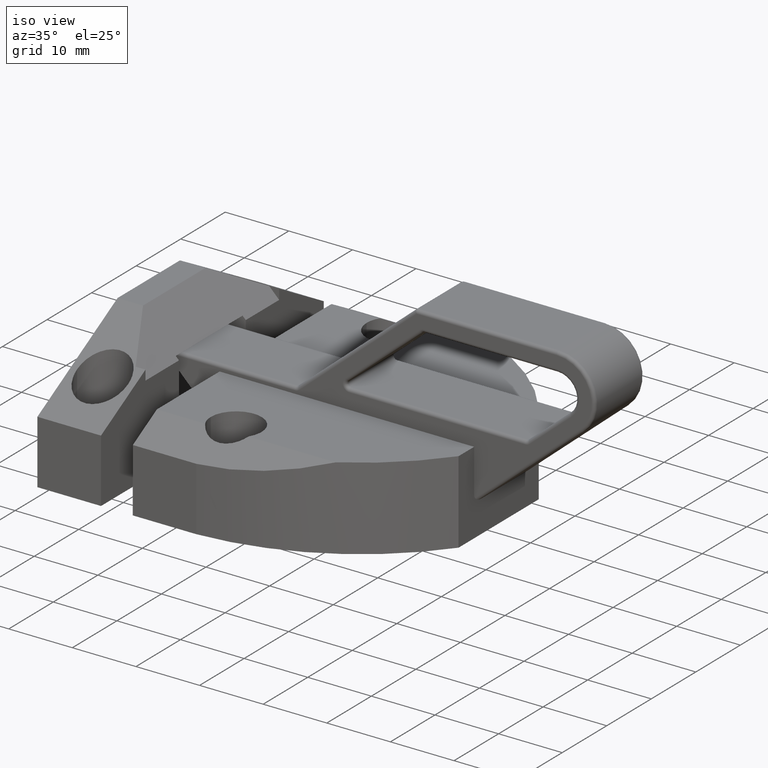
[diagram: clean part render]
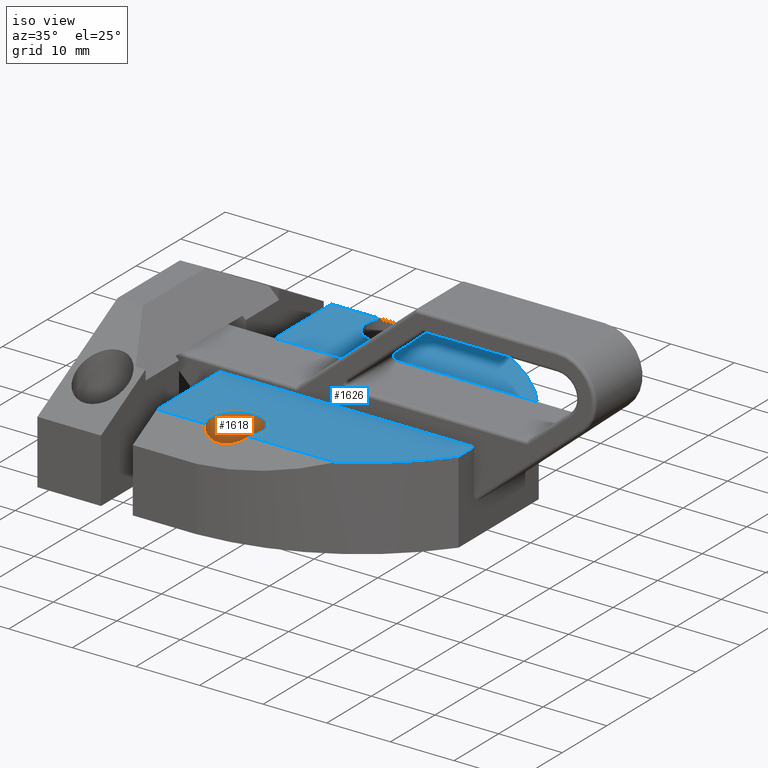
[diagram: same view with the hole feature highlighted: cylindrical wall and planar end face, labeled with their STEP entity ids]
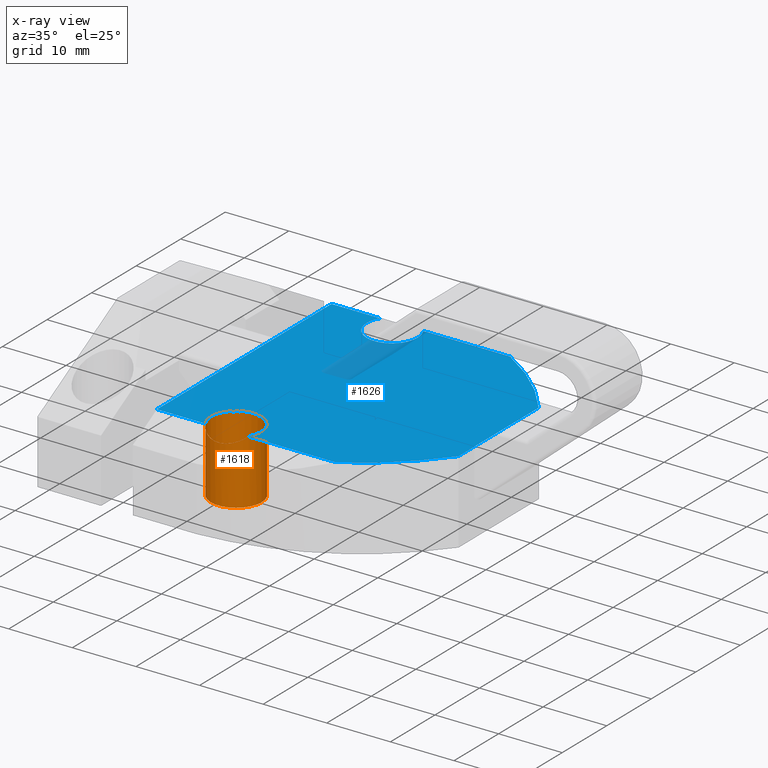
[diagram: x-ray of the same camera — body ghosted, the hole faces saturated]
A machine part, iso view. The highlighted faces form one hole feature of diameter 8 mm: the cylindrical wall (entity #1618, orange) and its adjacent planar end face (entity #1626, blue) — they share a circular edge in the B-rep.
The next image is the same camera in x-ray (body ghosted, the hole faces saturated) — the bore reads through the body.
Wall:
#97=ELLIPSE('',#1825,4.57583561821656,4.00000000000003);
#179=FACE_OUTER_BOUND('',#279,.T.);
#279=EDGE_LOOP('',(#1427,#1428,#1429,#1430,#1431,#1432,#1433));
#409=LINE('',#2782,#543);
#543=VECTOR('',#2302,4.);
#644=CIRCLE('',#1822,4.);
#645=CIRCLE('',#1823,4.);
#646=CIRCLE('',#1824,4.);
#647=CIRCLE('',#1826,4.);
#781=VERTEX_POINT('',#2777);
#782=VERTEX_POINT('',#2778);
#783=VERTEX_POINT('',#2781);
#784=VERTEX_POINT('',#2783);
#785=VERTEX_POINT('',#2785);
#1004=EDGE_CURVE('',#781,#782,#644,.T.);
#1005=EDGE_CURVE('',#782,#781,#645,.T.);
#1006=EDGE_CURVE('',#782,#783,#409,.T.);
#1007=EDGE_CURVE('',#783,#784,#646,.T.);
#1008=EDGE_CURVE('',#784,#785,#97,.T.);
#1009=EDGE_CURVE('',#785,#783,#647,.T.);
#1427=ORIENTED_EDGE('',*,*,#1004,.F.);
#1428=ORIENTED_EDGE('',*,*,#1005,.F.);
#1429=ORIENTED_EDGE('',*,*,#1006,.T.);
#1430=ORIENTED_EDGE('',*,*,#1007,.T.);
#1431=ORIENTED_EDGE('',*,*,#1008,.T.);
#1432=ORIENTED_EDGE('',*,*,#1009,.T.);
#1433=ORIENTED_EDGE('',*,*,#1006,.F.);
#1536=CYLINDRICAL_SURFACE('',#1821,4.);
#1618=ADVANCED_FACE('',(#179),#1536,.F.);
#1821=AXIS2_PLACEMENT_3D('',#2776,#2296,#2297);
#1822=AXIS2_PLACEMENT_3D('',#2779,#2298,#2299);
#1823=AXIS2_PLACEMENT_3D('',#2780,#2300,#2301);
#1824=AXIS2_PLACEMENT_3D('',#2784,#2303,#2304);
#1825=AXIS2_PLACEMENT_3D('',#2786,#2305,#2306);
#1826=AXIS2_PLACEMENT_3D('',#2787,#2307,#2308);
#2296=DIRECTION('center_axis',(0.,0.,1.));
#2297=DIRECTION('ref_axis',(1.,0.,0.));
#2298=DIRECTION('center_axis',(0.,0.,1.));
#2299=DIRECTION('ref_axis',(1.,0.,0.));
#2300=DIRECTION('center_axis',(0.,0.,1.));
#2301=DIRECTION('ref_axis',(1.,0.,0.));
#2302=DIRECTION('',(0.,0.,1.));
#2303=DIRECTION('center_axis',(0.,-1.32759449692103E-16,1.));
#2304=DIRECTION('ref_axis',(0.,-1.,-1.32759449692103E-16));
#2305=DIRECTION('center_axis',(0.,-0.485642931178631,0.874157276121538));
#2306=DIRECTION('ref_axis',(-9.97975144545669E-16,-0.874157276121538,-0.485642931178631));
#2307=DIRECTION('center_axis',(0.,-1.32759449692103E-16,1.));
#2308=DIRECTION('ref_axis',(0.,-1.,-1.32759449692103E-16));
#2776=CARTESIAN_POINT('Origin',(26.,-17.5,20.));
#2777=CARTESIAN_POINT('',(30.,-17.5,3.));
#2778=CARTESIAN_POINT('',(22.,-17.5,3.));
#2779=CARTESIAN_POINT('Origin',(26.,-17.5,3.));
#2780=CARTESIAN_POINT('Origin',(26.,-17.5,3.));
#2781=CARTESIAN_POINT('',(22.,-17.5,13.));
#2782=CARTESIAN_POINT('',(22.,-17.5,20.));
#2783=CARTESIAN_POINT('',(22.5955910938902,-19.6,13.));
#2784=CARTESIAN_POINT('Origin',(26.,-17.5,13.));
#2785=CARTESIAN_POINT('',(29.4044089061098,-19.6,13.));
#2786=CARTESIAN_POINT('Origin',(26.,-17.4999999999999,14.1666666666667));
#2787=CARTESIAN_POINT('Origin',(26.,-17.5,13.));
End face:
#85=PLANE('',#1838);
#187=FACE_OUTER_BOUND('',#289,.T.);
#289=EDGE_LOOP('',(#1474,#1475,#1476,#1477,#1478,#1479,#1480,#1481,#1482,
#1483,#1484,#1485));
#413=LINE('',#2797,#547);
#419=LINE('',#2810,#553);
#426=LINE('',#2828,#560);
#427=LINE('',#2829,#561);
#428=LINE('',#2833,#562);
#429=LINE('',#2834,#563);
#547=VECTOR('',#2314,1000.);
#553=VECTOR('',#2324,1000.);
#560=VECTOR('',#2343,1000.);
#561=VECTOR('',#2344,1000.);
#562=VECTOR('',#2349,1000.);
#563=VECTOR('',#2350,1000.);
#638=CIRCLE('',#1813,4.);
#639=CIRCLE('',#1815,4.);
#646=CIRCLE('',#1824,4.);
#647=CIRCLE('',#1826,4.);
#650=CIRCLE('',#1839,40.);
#651=CIRCLE('',#1840,40.);
#774=VERTEX_POINT('',#2759);
#775=VERTEX_POINT('',#2761);
#776=VERTEX_POINT('',#2763);
#783=VERTEX_POINT('',#2781);
#784=VERTEX_POINT('',#2783);
#785=VERTEX_POINT('',#2785);
#789=VERTEX_POINT('',#2794);
#790=VERTEX_POINT('',#2796);
#794=VERTEX_POINT('',#2808);
#795=VERTEX_POINT('',#2809);
#800=VERTEX_POINT('',#2826);
#801=VERTEX_POINT('',#2831);
#996=EDGE_CURVE('',#774,#775,#638,.T.);
#998=EDGE_CURVE('',#776,#774,#639,.T.);
#1007=EDGE_CURVE('',#783,#784,#646,.T.);
#1009=EDGE_CURVE('',#785,#783,#647,.T.);
#1013=EDGE_CURVE('',#789,#790,#413,.T.);
#1019=EDGE_CURVE('',#794,#795,#419,.T.);
#1029=EDGE_CURVE('',#790,#776,#426,.T.);
#1030=EDGE_CURVE('',#775,#800,#427,.T.);
#1032=EDGE_CURVE('',#785,#801,#428,.T.);
#1033=EDGE_CURVE('',#789,#784,#429,.T.);
#1034=EDGE_CURVE('',#795,#801,#650,.T.);
#1035=EDGE_CURVE('',#800,#794,#651,.T.);
#1474=ORIENTED_EDGE('',*,*,#1034,.F.);
#1475=ORIENTED_EDGE('',*,*,#1019,.F.);
#1476=ORIENTED_EDGE('',*,*,#1035,.F.);
#1477=ORIENTED_EDGE('',*,*,#1030,.F.);
#1478=ORIENTED_EDGE('',*,*,#996,.F.);
#1479=ORIENTED_EDGE('',*,*,#998,.F.);
#1480=ORIENTED_EDGE('',*,*,#1029,.F.);
#1481=ORIENTED_EDGE('',*,*,#1013,.F.);
#1482=ORIENTED_EDGE('',*,*,#1033,.T.);
#1483=ORIENTED_EDGE('',*,*,#1007,.F.);
#1484=ORIENTED_EDGE('',*,*,#1009,.F.);
#1485=ORIENTED_EDGE('',*,*,#1032,.T.);
#1626=ADVANCED_FACE('',(#187),#85,.T.);
#1813=AXIS2_PLACEMENT_3D('',#2762,#2279,#2280);
#1815=AXIS2_PLACEMENT_3D('',#2765,#2283,#2284);
#1824=AXIS2_PLACEMENT_3D('',#2784,#2303,#2304);
#1826=AXIS2_PLACEMENT_3D('',#2787,#2307,#2308);
#1838=AXIS2_PLACEMENT_3D('',#2835,#2351,#2352);
#1839=AXIS2_PLACEMENT_3D('',#2836,#2353,#2354);
#1840=AXIS2_PLACEMENT_3D('',#2837,#2355,#2356);
#2279=DIRECTION('center_axis',(0.,-1.32759449692103E-16,1.));
#2280=DIRECTION('ref_axis',(0.,-1.,-1.32759449692103E-16));
#2283=DIRECTION('center_axis',(0.,-1.32759449692103E-16,1.));
#2284=DIRECTION('ref_axis',(0.,-1.,-1.32759449692103E-16));
#2303=DIRECTION('center_axis',(0.,-1.32759449692103E-16,1.));
#2304=DIRECTION('ref_axis',(0.,-1.,-1.32759449692103E-16));
#2307=DIRECTION('center_axis',(0.,-1.32759449692103E-16,1.));
#2308=DIRECTION('ref_axis',(0.,-1.,-1.32759449692103E-16));
#2314=DIRECTION('',(0.,1.,1.32759449692102E-16));
#2324=DIRECTION('',(0.,-1.,-1.32759449692102E-16));
#2343=DIRECTION('',(1.,0.,0.));
#2344=DIRECTION('',(1.,0.,0.));
#2349=DIRECTION('',(1.,0.,0.));
#2350=DIRECTION('',(1.,0.,0.));
#2351=DIRECTION('center_axis',(0.,-1.32759449692103E-16,1.));
#2352=DIRECTION('ref_axis',(0.,-1.,-1.32759449692103E-16));
#2353=DIRECTION('center_axis',(0.,0.,-1.));
#2354=DIRECTION('ref_axis',(-1.,0.,0.));
#2355=DIRECTION('center_axis',(0.,1.32759449692103E-16,-1.));
#2356=DIRECTION('ref_axis',(-3.55618312575245E-15,-1.,-1.32759449692103E-16));
#2759=CARTESIAN_POINT('',(22.,17.5,13.));
#2761=CARTESIAN_POINT('',(29.4044089061098,19.6,13.));
#2762=CARTESIAN_POINT('Origin',(26.,17.5,13.));
#2763=CARTESIAN_POINT('',(22.5955910938902,19.6,13.));
#2765=CARTESIAN_POINT('Origin',(26.,17.5,13.));
#2781=CARTESIAN_POINT('',(22.,-17.5,13.));
#2783=CARTESIAN_POINT('',(22.5955910938902,-19.6,13.));
#2784=CARTESIAN_POINT('Origin',(26.,-17.5,13.));
#2785=CARTESIAN_POINT('',(29.4044089061098,-19.6,13.));
#2787=CARTESIAN_POINT('Origin',(26.,-17.5,13.));
#2794=CARTESIAN_POINT('',(15.,-19.6,13.));
#2796=CARTESIAN_POINT('',(15.,19.6,13.));
#2797=CARTESIAN_POINT('',(15.,19.6,13.));
#2808=CARTESIAN_POINT('',(55.,9.,13.));
#2809=CARTESIAN_POINT('',(55.,-9.,13.));
#2810=CARTESIAN_POINT('',(55.,19.6,13.));
#2826=CARTESIAN_POINT('',(43.1213157789052,19.6,13.));
#2828=CARTESIAN_POINT('',(-35.0899191454728,19.6,13.));
#2829=CARTESIAN_POINT('',(-35.0899191454728,19.6,13.));
#2831=CARTESIAN_POINT('',(43.1213157789052,-19.6,13.));
#2833=CARTESIAN_POINT('',(-35.0899191454728,-19.6,13.));
#2834=CARTESIAN_POINT('',(-35.0899191454728,-19.6,13.));
#2835=CARTESIAN_POINT('Origin',(-35.0899191454728,19.6,13.));
#2836=CARTESIAN_POINT('Origin',(22.9610663621349,14.9480005709971,13.));
#2837=CARTESIAN_POINT('Origin',(22.9610663621349,-14.9480005709971,13.));